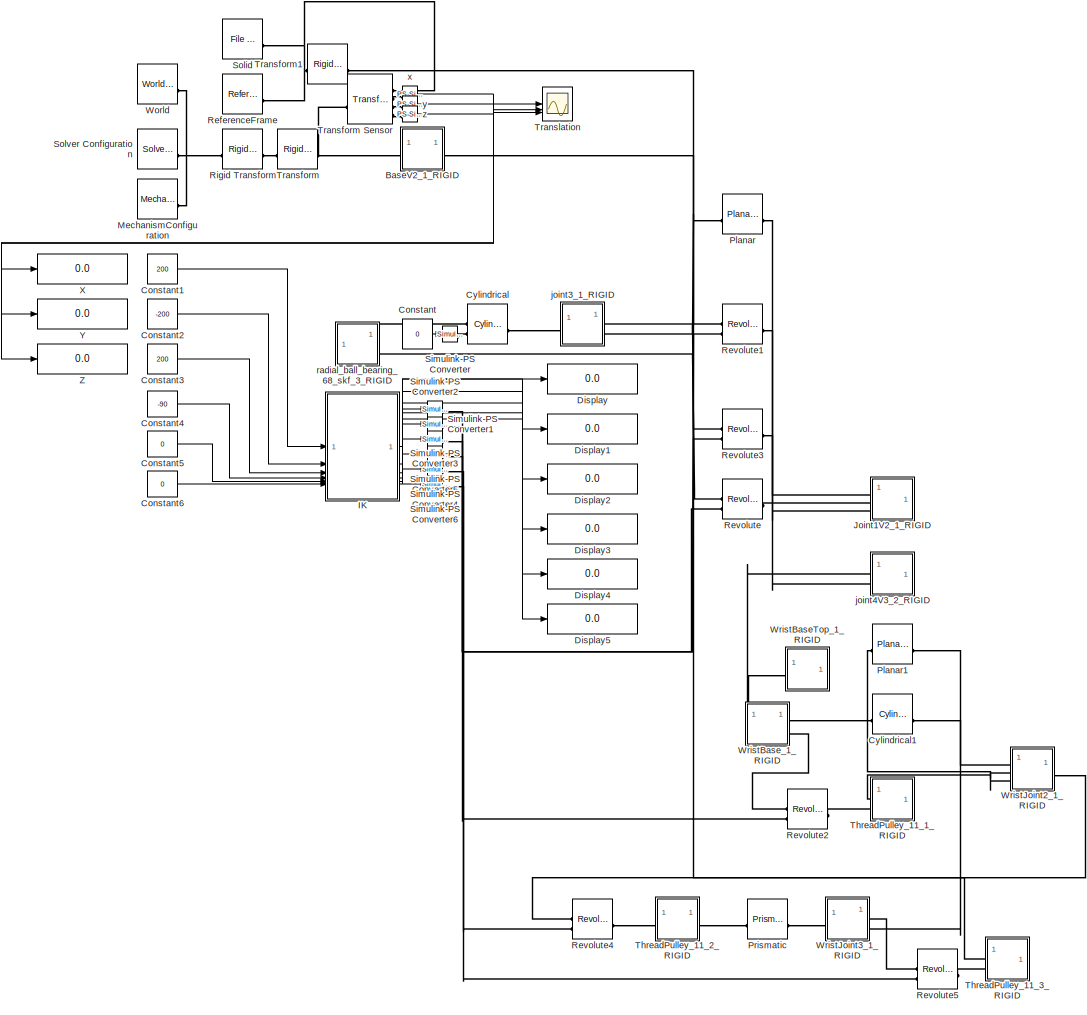
[diagram: root canvas - part 1/1, most of the canvas]
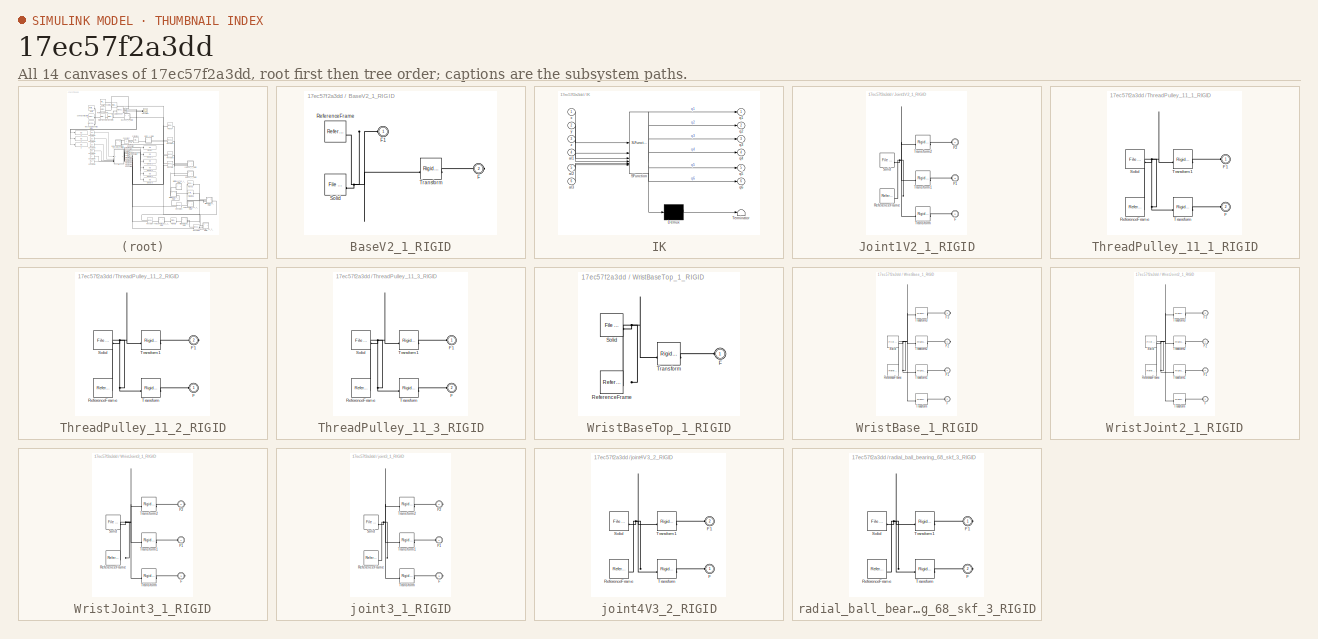
[diagram: thumbnail index - all 14 canvases of the model, root first then tree order]
MODEL slx_17ec57f2a3dd
KIND model
CONFIG AbsTol = auto
CONFIG EnableMultiTasking = off
CONFIG FixedStep = auto
CONFIG MaxStep = auto
CONFIG MinStep = auto
CONFIG RelTol = 1e-3
CONFIG SampleTimeConstraint = Unconstrained
CONFIG SolverName = VariableStepAuto
CONFIG StartTime = 0.0
CONFIG StopTime = 100
WORKSPACE source: external: MATLAB File  (data not in archive)
BLOCK [SubSystem] BaseV2_1_RIGID
BLOCK [PMIOPort] BaseV2_1_RIGID/F
  Port = 2
  Side = Right
BLOCK [PMIOPort] BaseV2_1_RIGID/F1
  Side = Left
BLOCK [Reference] BaseV2_1_RIGID/ReferenceFrame  REF=sm_lib/Frames and
Transforms/Reference
Frame
  SourceBlock = sm_lib/Frames and\nTransforms/Reference\nFrame
  SourceType = Reference\nFrame
BLOCK [Reference] BaseV2_1_RIGID/Solid  REF=sm_lib/Body Elements/File Solid
  SourceBlock = sm_lib/Body Elements/File Solid
  SourceType = File Solid
BLOCK [Reference] BaseV2_1_RIGID/Transform  REF=sm_lib/Frames and
Transforms/Rigid
Transform
  SourceBlock = sm_lib/Frames and\nTransforms/Rigid\nTransform
  SourceType = Rigid\nTransform
BLOCK [Constant] Constant
  Value = 0
BLOCK [Constant] Constant1
  Value = 200
BLOCK [Constant] Constant2
  Value = -200
BLOCK [Constant] Constant3
  Value = 200
BLOCK [Constant] Constant4
  Value = -90
BLOCK [Constant] Constant5
  Value = 0
BLOCK [Constant] Constant6
  Value = 0
BLOCK [Reference] Cylindrical  REF=sm_lib/Joints/Cylindrical
Joint
  SourceBlock = sm_lib/Joints/Cylindrical\nJoint
  SourceType = Cylindrical\nJoint
BLOCK [Reference] Cylindrical1  REF=sm_lib/Joints/Cylindrical
Joint
  SourceBlock = sm_lib/Joints/Cylindrical\nJoint
  SourceType = Cylindrical\nJoint
BLOCK [Display] Display
  Decimation = 1
BLOCK [Display] Display1
  Decimation = 1
BLOCK [Display] Display2
  Decimation = 1
BLOCK [Display] Display3
  Decimation = 1
BLOCK [Display] Display4
  Decimation = 1
BLOCK [Display] Display5
  Decimation = 1
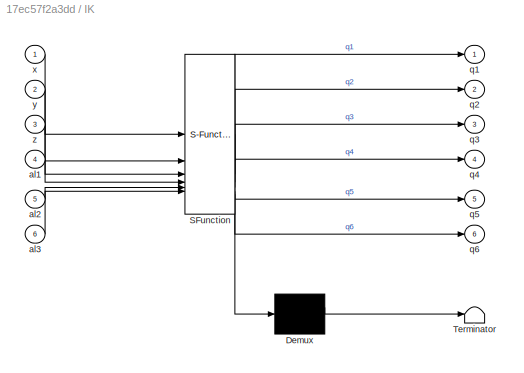
BLOCK [SubSystem] IK
  ErrorFcn = Stateflow.Translate.translate
  LibrarySourceBlock = simulink/User-Defined\nFunctions/MATLAB Function
  PermitHierarchicalResolution = ExplicitOnly
  SFBlockType = MATLAB Function
  TreatAsAtomicUnit = on
BLOCK [Demux] IK/ Demux 
  Outputs = 1
BLOCK [S-Function] IK/ SFunction 
  EnableBusSupport = on
  FunctionName = sf_sfun
  PortCounts = [6 7]
  SFcnIsStateOwnerBlock = off
  SFunctionDeploymentMode = off
  Tag = Stateflow S-Function 2
BLOCK [Terminator] IK/ Terminator 
BLOCK [Inport] IK/al1
  Port = 4
BLOCK [Inport] IK/al2
  Port = 5
BLOCK [Inport] IK/al3
  Port = 6
BLOCK [Outport] IK/q1
BLOCK [Outport] IK/q2
  Port = 2
BLOCK [Outport] IK/q3
  Port = 3
BLOCK [Outport] IK/q4
  Port = 4
BLOCK [Outport] IK/q5
  Port = 5
BLOCK [Outport] IK/q6
  Port = 6
BLOCK [Inport] IK/x
BLOCK [Inport] IK/y
  Port = 2
BLOCK [Inport] IK/z
  Port = 3
BLOCK [SubSystem] Joint1V2_1_RIGID
BLOCK [PMIOPort] Joint1V2_1_RIGID/F
  Port = 2
  Side = Left
BLOCK [PMIOPort] Joint1V2_1_RIGID/F1
  Port = 3
  Side = Left
BLOCK [PMIOPort] Joint1V2_1_RIGID/F2
  Side = Left
BLOCK [Reference] Joint1V2_1_RIGID/ReferenceFrame  REF=sm_lib/Frames and
Transforms/Reference
Frame
  SourceBlock = sm_lib/Frames and\nTransforms/Reference\nFrame
  SourceType = Reference\nFrame
BLOCK [Reference] Joint1V2_1_RIGID/Solid  REF=sm_lib/Body Elements/File Solid
  SourceBlock = sm_lib/Body Elements/File Solid
  SourceType = File Solid
BLOCK [Reference] Joint1V2_1_RIGID/Transform  REF=sm_lib/Frames and
Transforms/Rigid
Transform
  SourceBlock = sm_lib/Frames and\nTransforms/Rigid\nTransform
  SourceType = Rigid\nTransform
BLOCK [Reference] Joint1V2_1_RIGID/Transform1  REF=sm_lib/Frames and
Transforms/Rigid
Transform
  SourceBlock = sm_lib/Frames and\nTransforms/Rigid\nTransform
  SourceType = Rigid\nTransform
BLOCK [Reference] Joint1V2_1_RIGID/Transform2  REF=sm_lib/Frames and
Transforms/Rigid
Transform
  SourceBlock = sm_lib/Frames and\nTransforms/Rigid\nTransform
  SourceType = Rigid\nTransform
BLOCK [Reference] MechanismConfiguration  REF=sm_lib/Utilities/Mechanism
Configuration
  SourceBlock = sm_lib/Utilities/Mechanism\nConfiguration
  SourceType = Mechanism\nConfiguration
BLOCK [Reference] Planar  REF=sm_lib/Joints/Planar Joint
  SourceBlock = sm_lib/Joints/Planar Joint
  SourceType = Planar Joint
BLOCK [Reference] Planar1  REF=sm_lib/Joints/Planar Joint
  SourceBlock = sm_lib/Joints/Planar Joint
  SourceType = Planar Joint
BLOCK [Reference] Prismatic  REF=sm_lib/Joints/Prismatic
Joint
  SourceBlock = sm_lib/Joints/Prismatic\nJoint
  SourceType = Prismatic\nJoint
BLOCK [Reference] ReferenceFrame  REF=sm_lib/Frames and
Transforms/Reference
Frame
  SourceBlock = sm_lib/Frames and\nTransforms/Reference\nFrame
  SourceType = Reference\nFrame
BLOCK [Reference] Revolute  REF=sm_lib/Joints/Revolute Joint
  SourceBlock = sm_lib/Joints/Revolute Joint
  SourceType = Revolute Joint
BLOCK [Reference] Revolute1  REF=sm_lib/Joints/Revolute Joint
  SourceBlock = sm_lib/Joints/Revolute Joint
  SourceType = Revolute Joint
BLOCK [Reference] Revolute2  REF=sm_lib/Joints/Revolute Joint
  SourceBlock = sm_lib/Joints/Revolute Joint
  SourceType = Revolute Joint
BLOCK [Reference] Revolute3  REF=sm_lib/Joints/Revolute Joint
  SourceBlock = sm_lib/Joints/Revolute Joint
  SourceType = Revolute Joint
BLOCK [Reference] Revolute4  REF=sm_lib/Joints/Revolute Joint
  SourceBlock = sm_lib/Joints/Revolute Joint
  SourceType = Revolute Joint
BLOCK [Reference] Revolute5  REF=sm_lib/Joints/Revolute Joint
  SourceBlock = sm_lib/Joints/Revolute Joint
  SourceType = Revolute Joint
BLOCK [Reference] Rigid Transform  REF=sm_lib/Frames and
Transforms/Rigid
Transform
  SourceBlock = sm_lib/Frames and\nTransforms/Rigid\nTransform
  SourceType = Rigid\nTransform
BLOCK [Reference] Simulink-PS Converter  REF=nesl_utility/Simulink-PS
Converter
  SourceBlock = nesl_utility/Simulink-PS\nConverter
  SourceType = Simulink-PS\nConverter
BLOCK [Reference] Simulink-PS Converter1  REF=nesl_utility/Simulink-PS
Converter
  SourceBlock = nesl_utility/Simulink-PS\nConverter
  SourceType = Simulink-PS\nConverter
BLOCK [Reference] Simulink-PS Converter2  REF=nesl_utility/Simulink-PS
Converter
  SourceBlock = nesl_utility/Simulink-PS\nConverter
  SourceType = Simulink-PS\nConverter
BLOCK [Reference] Simulink-PS Converter3  REF=nesl_utility/Simulink-PS
Converter
  SourceBlock = nesl_utility/Simulink-PS\nConverter
  SourceType = Simulink-PS\nConverter
BLOCK [Reference] Simulink-PS Converter4  REF=nesl_utility/Simulink-PS
Converter
  SourceBlock = nesl_utility/Simulink-PS\nConverter
  SourceType = Simulink-PS\nConverter
BLOCK [Reference] Simulink-PS Converter5  REF=nesl_utility/Simulink-PS
Converter
  SourceBlock = nesl_utility/Simulink-PS\nConverter
  SourceType = Simulink-PS\nConverter
BLOCK [Reference] Simulink-PS Converter6  REF=nesl_utility/Simulink-PS
Converter
  SourceBlock = nesl_utility/Simulink-PS\nConverter
  SourceType = Simulink-PS\nConverter
BLOCK [Reference] Solid  REF=sm_lib/Body Elements/File Solid
  SourceBlock = sm_lib/Body Elements/File Solid
  SourceType = File Solid
BLOCK [Reference] Solver Configuration  REF=nesl_utility/Solver
Configuration
  SourceBlock = nesl_utility/Solver\nConfiguration
  SourceType = Solver\nConfiguration
BLOCK [SubSystem] ThreadPulley_11_1_RIGID
BLOCK [PMIOPort] ThreadPulley_11_1_RIGID/F
  Port = 2
  Side = Left
BLOCK [PMIOPort] ThreadPulley_11_1_RIGID/F1
  Side = Left
BLOCK [Reference] ThreadPulley_11_1_RIGID/ReferenceFrame  REF=sm_lib/Frames and
Transforms/Reference
Frame
  SourceBlock = sm_lib/Frames and\nTransforms/Reference\nFrame
  SourceType = Reference\nFrame
BLOCK [Reference] ThreadPulley_11_1_RIGID/Solid  REF=sm_lib/Body Elements/File Solid
  SourceBlock = sm_lib/Body Elements/File Solid
  SourceType = File Solid
BLOCK [Reference] ThreadPulley_11_1_RIGID/Transform  REF=sm_lib/Frames and
Transforms/Rigid
Transform
  SourceBlock = sm_lib/Frames and\nTransforms/Rigid\nTransform
  SourceType = Rigid\nTransform
BLOCK [Reference] ThreadPulley_11_1_RIGID/Transform1  REF=sm_lib/Frames and
Transforms/Rigid
Transform
  SourceBlock = sm_lib/Frames and\nTransforms/Rigid\nTransform
  SourceType = Rigid\nTransform
BLOCK [SubSystem] ThreadPulley_11_2_RIGID
BLOCK [PMIOPort] ThreadPulley_11_2_RIGID/F
  Side = Left
BLOCK [PMIOPort] ThreadPulley_11_2_RIGID/F1
  Port = 2
  Side = Right
BLOCK [Reference] ThreadPulley_11_2_RIGID/ReferenceFrame  REF=sm_lib/Frames and
Transforms/Reference
Frame
  SourceBlock = sm_lib/Frames and\nTransforms/Reference\nFrame
  SourceType = Reference\nFrame
BLOCK [Reference] ThreadPulley_11_2_RIGID/Solid  REF=sm_lib/Body Elements/File Solid
  SourceBlock = sm_lib/Body Elements/File Solid
  SourceType = File Solid
BLOCK [Reference] ThreadPulley_11_2_RIGID/Transform  REF=sm_lib/Frames and
Transforms/Rigid
Transform
  SourceBlock = sm_lib/Frames and\nTransforms/Rigid\nTransform
  SourceType = Rigid\nTransform
BLOCK [Reference] ThreadPulley_11_2_RIGID/Transform1  REF=sm_lib/Frames and
Transforms/Rigid
Transform
  SourceBlock = sm_lib/Frames and\nTransforms/Rigid\nTransform
  SourceType = Rigid\nTransform
BLOCK [SubSystem] ThreadPulley_11_3_RIGID
BLOCK [PMIOPort] ThreadPulley_11_3_RIGID/F
  Port = 2
  Side = Left
BLOCK [PMIOPort] ThreadPulley_11_3_RIGID/F1
  Side = Left
BLOCK [Reference] ThreadPulley_11_3_RIGID/ReferenceFrame  REF=sm_lib/Frames and
Transforms/Reference
Frame
  SourceBlock = sm_lib/Frames and\nTransforms/Reference\nFrame
  SourceType = Reference\nFrame
BLOCK [Reference] ThreadPulley_11_3_RIGID/Solid  REF=sm_lib/Body Elements/File Solid
  SourceBlock = sm_lib/Body Elements/File Solid
  SourceType = File Solid
BLOCK [Reference] ThreadPulley_11_3_RIGID/Transform  REF=sm_lib/Frames and
Transforms/Rigid
Transform
  SourceBlock = sm_lib/Frames and\nTransforms/Rigid\nTransform
  SourceType = Rigid\nTransform
BLOCK [Reference] ThreadPulley_11_3_RIGID/Transform1  REF=sm_lib/Frames and
Transforms/Rigid
Transform
  SourceBlock = sm_lib/Frames and\nTransforms/Rigid\nTransform
  SourceType = Rigid\nTransform
BLOCK [Reference] Transform  REF=sm_lib/Frames and
Transforms/Rigid
Transform
  SourceBlock = sm_lib/Frames and\nTransforms/Rigid\nTransform
  SourceType = Rigid\nTransform
BLOCK [Reference] Transform Sensor  REF=sm_lib/Frames and
Transforms/Transform
Sensor
  SourceBlock = sm_lib/Frames and\nTransforms/Transform\nSensor
  SourceType = Transform\nSensor
BLOCK [Reference] Transform1  REF=sm_lib/Frames and
Transforms/Rigid
Transform
  SourceBlock = sm_lib/Frames and\nTransforms/Rigid\nTransform
  SourceType = Rigid\nTransform
BLOCK [Scope] Translation
  Floating = off
  NumInputPorts = 3
  ScopeSpecificationString = Simulink.scopes.TimeScopeBlockCfg('CurrentConfiguration', extmgr.ConfigurationSet(extmgr.Configuration('Core','General UI',true),extmgr.Configuration('Core','Source UI',true),extmgr.Configuration('Sources','WiredSimulink',true,'DataLoggingVariableName','ScopeData1'),extmgr.Configuration('Visuals','Time Domain',true,'SerializedDisplays',{struct('MinYLimReal','-0.50005','MaxYLimReal','0.68853','YLab...<+1982ch>
BLOCK [Reference] World  REF=sm_lib/Frames and
Transforms/World Frame
  SourceBlock = sm_lib/Frames and\nTransforms/World Frame
  SourceType = World Frame
BLOCK [SubSystem] WristBaseTop_1_RIGID
BLOCK [PMIOPort] WristBaseTop_1_RIGID/F
  Side = Left
BLOCK [Reference] WristBaseTop_1_RIGID/ReferenceFrame  REF=sm_lib/Frames and
Transforms/Reference
Frame
  SourceBlock = sm_lib/Frames and\nTransforms/Reference\nFrame
  SourceType = Reference\nFrame
BLOCK [Reference] WristBaseTop_1_RIGID/Solid  REF=sm_lib/Body Elements/File Solid
  SourceBlock = sm_lib/Body Elements/File Solid
  SourceType = File Solid
BLOCK [Reference] WristBaseTop_1_RIGID/Transform  REF=sm_lib/Frames and
Transforms/Rigid
Transform
  SourceBlock = sm_lib/Frames and\nTransforms/Rigid\nTransform
  SourceType = Rigid\nTransform
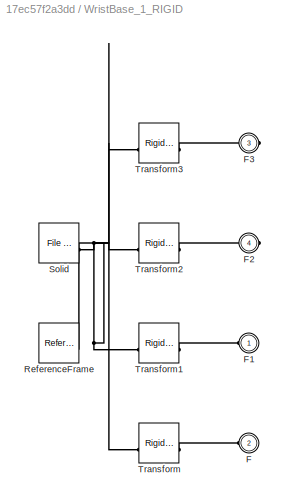
BLOCK [SubSystem] WristBase_1_RIGID
BLOCK [PMIOPort] WristBase_1_RIGID/F
  Port = 2
  Side = Left
BLOCK [PMIOPort] WristBase_1_RIGID/F1
  Side = Left
BLOCK [PMIOPort] WristBase_1_RIGID/F2
  Port = 4
  Side = Right
BLOCK [PMIOPort] WristBase_1_RIGID/F3
  Port = 3
  Side = Right
BLOCK [Reference] WristBase_1_RIGID/ReferenceFrame  REF=sm_lib/Frames and
Transforms/Reference
Frame
  SourceBlock = sm_lib/Frames and\nTransforms/Reference\nFrame
  SourceType = Reference\nFrame
BLOCK [Reference] WristBase_1_RIGID/Solid  REF=sm_lib/Body Elements/File Solid
  SourceBlock = sm_lib/Body Elements/File Solid
  SourceType = File Solid
BLOCK [Reference] WristBase_1_RIGID/Transform  REF=sm_lib/Frames and
Transforms/Rigid
Transform
  SourceBlock = sm_lib/Frames and\nTransforms/Rigid\nTransform
  SourceType = Rigid\nTransform
BLOCK [Reference] WristBase_1_RIGID/Transform1  REF=sm_lib/Frames and
Transforms/Rigid
Transform
  SourceBlock = sm_lib/Frames and\nTransforms/Rigid\nTransform
  SourceType = Rigid\nTransform
BLOCK [Reference] WristBase_1_RIGID/Transform2  REF=sm_lib/Frames and
Transforms/Rigid
Transform
  SourceBlock = sm_lib/Frames and\nTransforms/Rigid\nTransform
  SourceType = Rigid\nTransform
BLOCK [Reference] WristBase_1_RIGID/Transform3  REF=sm_lib/Frames and
Transforms/Rigid
Transform
  SourceBlock = sm_lib/Frames and\nTransforms/Rigid\nTransform
  SourceType = Rigid\nTransform
BLOCK [SubSystem] WristJoint2_1_RIGID
BLOCK [PMIOPort] WristJoint2_1_RIGID/F
  Side = Left
BLOCK [PMIOPort] WristJoint2_1_RIGID/F1
  Port = 2
  Side = Left
BLOCK [PMIOPort] WristJoint2_1_RIGID/F2
  Port = 4
  Side = Right
BLOCK [PMIOPort] WristJoint2_1_RIGID/F3
  Port = 3
  Side = Left
BLOCK [Reference] WristJoint2_1_RIGID/ReferenceFrame  REF=sm_lib/Frames and
Transforms/Reference
Frame
  SourceBlock = sm_lib/Frames and\nTransforms/Reference\nFrame
  SourceType = Reference\nFrame
BLOCK [Reference] WristJoint2_1_RIGID/Solid  REF=sm_lib/Body Elements/File Solid
  SourceBlock = sm_lib/Body Elements/File Solid
  SourceType = File Solid
BLOCK [Reference] WristJoint2_1_RIGID/Transform  REF=sm_lib/Frames and
Transforms/Rigid
Transform
  SourceBlock = sm_lib/Frames and\nTransforms/Rigid\nTransform
  SourceType = Rigid\nTransform
BLOCK [Reference] WristJoint2_1_RIGID/Transform1  REF=sm_lib/Frames and
Transforms/Rigid
Transform
  SourceBlock = sm_lib/Frames and\nTransforms/Rigid\nTransform
  SourceType = Rigid\nTransform
BLOCK [Reference] WristJoint2_1_RIGID/Transform2  REF=sm_lib/Frames and
Transforms/Rigid
Transform
  SourceBlock = sm_lib/Frames and\nTransforms/Rigid\nTransform
  SourceType = Rigid\nTransform
BLOCK [Reference] WristJoint2_1_RIGID/Transform3  REF=sm_lib/Frames and
Transforms/Rigid
Transform
  SourceBlock = sm_lib/Frames and\nTransforms/Rigid\nTransform
  SourceType = Rigid\nTransform
BLOCK [SubSystem] WristJoint3_1_RIGID
BLOCK [PMIOPort] WristJoint3_1_RIGID/F
  Port = 3
  Side = Right
BLOCK [PMIOPort] WristJoint3_1_RIGID/F1
  Side = Left
BLOCK [PMIOPort] WristJoint3_1_RIGID/F2
  Port = 2
  Side = Right
BLOCK [Reference] WristJoint3_1_RIGID/ReferenceFrame  REF=sm_lib/Frames and
Transforms/Reference
Frame
  SourceBlock = sm_lib/Frames and\nTransforms/Reference\nFrame
  SourceType = Reference\nFrame
BLOCK [Reference] WristJoint3_1_RIGID/Solid  REF=sm_lib/Body Elements/File Solid
  SourceBlock = sm_lib/Body Elements/File Solid
  SourceType = File Solid
BLOCK [Reference] WristJoint3_1_RIGID/Transform  REF=sm_lib/Frames and
Transforms/Rigid
Transform
  SourceBlock = sm_lib/Frames and\nTransforms/Rigid\nTransform
  SourceType = Rigid\nTransform
BLOCK [Reference] WristJoint3_1_RIGID/Transform1  REF=sm_lib/Frames and
Transforms/Rigid
Transform
  SourceBlock = sm_lib/Frames and\nTransforms/Rigid\nTransform
  SourceType = Rigid\nTransform
BLOCK [Reference] WristJoint3_1_RIGID/Transform2  REF=sm_lib/Frames and
Transforms/Rigid
Transform
  SourceBlock = sm_lib/Frames and\nTransforms/Rigid\nTransform
  SourceType = Rigid\nTransform
BLOCK [Display] X
  Decimation = 1
BLOCK [Display] Y
  Decimation = 1
BLOCK [Display] Z
  Decimation = 1
BLOCK [SubSystem] joint3_1_RIGID
BLOCK [PMIOPort] joint3_1_RIGID/F
  Port = 3
  Side = Right
BLOCK [PMIOPort] joint3_1_RIGID/F1
  Side = Left
BLOCK [PMIOPort] joint3_1_RIGID/F2
  Port = 2
  Side = Right
BLOCK [Reference] joint3_1_RIGID/ReferenceFrame  REF=sm_lib/Frames and
Transforms/Reference
Frame
  SourceBlock = sm_lib/Frames and\nTransforms/Reference\nFrame
  SourceType = Reference\nFrame
BLOCK [Reference] joint3_1_RIGID/Solid  REF=sm_lib/Body Elements/File Solid
  SourceBlock = sm_lib/Body Elements/File Solid
  SourceType = File Solid
BLOCK [Reference] joint3_1_RIGID/Transform  REF=sm_lib/Frames and
Transforms/Rigid
Transform
  SourceBlock = sm_lib/Frames and\nTransforms/Rigid\nTransform
  SourceType = Rigid\nTransform
BLOCK [Reference] joint3_1_RIGID/Transform1  REF=sm_lib/Frames and
Transforms/Rigid
Transform
  SourceBlock = sm_lib/Frames and\nTransforms/Rigid\nTransform
  SourceType = Rigid\nTransform
BLOCK [Reference] joint3_1_RIGID/Transform2  REF=sm_lib/Frames and
Transforms/Rigid
Transform
  SourceBlock = sm_lib/Frames and\nTransforms/Rigid\nTransform
  SourceType = Rigid\nTransform
BLOCK [SubSystem] joint4V3_2_RIGID
BLOCK [PMIOPort] joint4V3_2_RIGID/F
  Side = Left
BLOCK [PMIOPort] joint4V3_2_RIGID/F1
  Port = 2
  Side = Left
BLOCK [Reference] joint4V3_2_RIGID/ReferenceFrame  REF=sm_lib/Frames and
Transforms/Reference
Frame
  SourceBlock = sm_lib/Frames and\nTransforms/Reference\nFrame
  SourceType = Reference\nFrame
BLOCK [Reference] joint4V3_2_RIGID/Solid  REF=sm_lib/Body Elements/File Solid
  SourceBlock = sm_lib/Body Elements/File Solid
  SourceType = File Solid
BLOCK [Reference] joint4V3_2_RIGID/Transform  REF=sm_lib/Frames and
Transforms/Rigid
Transform
  SourceBlock = sm_lib/Frames and\nTransforms/Rigid\nTransform
  SourceType = Rigid\nTransform
BLOCK [Reference] joint4V3_2_RIGID/Transform1  REF=sm_lib/Frames and
Transforms/Rigid
Transform
  SourceBlock = sm_lib/Frames and\nTransforms/Rigid\nTransform
  SourceType = Rigid\nTransform
BLOCK [SubSystem] radial_ball_bearing_68_skf_3_RIGID
BLOCK [PMIOPort] radial_ball_bearing_68_skf_3_RIGID/F
  Port = 2
  Side = Right
BLOCK [PMIOPort] radial_ball_bearing_68_skf_3_RIGID/F1
  Side = Right
BLOCK [Reference] radial_ball_bearing_68_skf_3_RIGID/ReferenceFrame  REF=sm_lib/Frames and
Transforms/Reference
Frame
  SourceBlock = sm_lib/Frames and\nTransforms/Reference\nFrame
  SourceType = Reference\nFrame
BLOCK [Reference] radial_ball_bearing_68_skf_3_RIGID/Solid  REF=sm_lib/Body Elements/File Solid
  SourceBlock = sm_lib/Body Elements/File Solid
  SourceType = File Solid
BLOCK [Reference] radial_ball_bearing_68_skf_3_RIGID/Transform  REF=sm_lib/Frames and
Transforms/Rigid
Transform
  SourceBlock = sm_lib/Frames and\nTransforms/Rigid\nTransform
  SourceType = Rigid\nTransform
BLOCK [Reference] radial_ball_bearing_68_skf_3_RIGID/Transform1  REF=sm_lib/Frames and
Transforms/Rigid
Transform
  SourceBlock = sm_lib/Frames and\nTransforms/Rigid\nTransform
  SourceType = Rigid\nTransform
BLOCK [Reference] x  REF=nesl_utility/PS-Simulink
Converter
  SourceBlock = nesl_utility/PS-Simulink\nConverter
  SourceType = PS-Simulink\nConverter
BLOCK [Reference] y  REF=nesl_utility/PS-Simulink
Converter
  SourceBlock = nesl_utility/PS-Simulink\nConverter
  SourceType = PS-Simulink\nConverter
BLOCK [Reference] z  REF=nesl_utility/PS-Simulink
Converter
  SourceBlock = nesl_utility/PS-Simulink\nConverter
  SourceType = PS-Simulink\nConverter
LINE Constant1:1 -> IK:1
LINE Constant2:1 -> IK:2
LINE Constant3:1 -> IK:3
LINE Constant4:1 -> IK:4
LINE Constant5:1 -> IK:5
LINE Constant6:1 -> IK:6
LINE Constant:1 -> Simulink-PS Converter:1
NET IK:1 -> Display:1, Simulink-PS Converter2:1
NET IK:2 -> Display1:1, Simulink-PS Converter1:1
NET IK:3 -> Display2:1, Simulink-PS Converter3:1
NET IK:4 -> Display3:1, Simulink-PS Converter5:1
NET IK:5 -> Display4:1, Simulink-PS Converter4:1
NET IK:6 -> Display5:1, Simulink-PS Converter6:1
NET x:1 -> Translation:1, X:1
NET y:1 -> Translation:2, Y:1
NET z:1 -> Translation:3, Z:1
PNET net1: BaseV2_1_RIGID/F1:RConn1 -- BaseV2_1_RIGID/ReferenceFrame:RConn1 -- BaseV2_1_RIGID/Solid:RConn1 -- BaseV2_1_RIGID/Transform:LConn1
PLINE BaseV2_1_RIGID/F:RConn1 -- BaseV2_1_RIGID/Transform:RConn1
PNET net2: BaseV2_1_RIGID:LConn1 -- Transform Sensor:LConn1 -- Transform:RConn1
PLINE BaseV2_1_RIGID:RConn1 -- Revolute1:LConn1
PLINE Cylindrical1:LConn1 -- WristBase_1_RIGID:RConn1
PLINE Cylindrical1:RConn1 -- WristJoint2_1_RIGID:LConn1
PLINE Cylindrical:LConn1 -- radial_ball_bearing_68_skf_3_RIGID:RConn1
PLINE Cylindrical:LConn2 -- Simulink-PS Converter:RConn1
PLINE Cylindrical:RConn1 -- joint3_1_RIGID:LConn1
PLINE Joint1V2_1_RIGID/F1:RConn1 -- Joint1V2_1_RIGID/Transform1:RConn1
PLINE Joint1V2_1_RIGID/F2:RConn1 -- Joint1V2_1_RIGID/Transform2:RConn1
PLINE Joint1V2_1_RIGID/F:RConn1 -- Joint1V2_1_RIGID/Transform:RConn1
PNET net3: Joint1V2_1_RIGID/ReferenceFrame:RConn1 -- Joint1V2_1_RIGID/Solid:RConn1 -- Joint1V2_1_RIGID/Transform1:LConn1 -- Joint1V2_1_RIGID/Transform2:LConn1 -- Joint1V2_1_RIGID/Transform:LConn1
PLINE Joint1V2_1_RIGID:LConn1 -- Planar:RConn1
PLINE Joint1V2_1_RIGID:LConn2 -- Revolute:RConn1
PLINE Joint1V2_1_RIGID:LConn3 -- Revolute1:RConn1
PNET net4: MechanismConfiguration:RConn1 -- Rigid Transform:LConn1 -- Solver Configuration:RConn1 -- World:RConn1
PLINE Planar1:LConn1 -- WristJoint3_1_RIGID:RConn2
PLINE Planar1:RConn1 -- WristJoint2_1_RIGID:LConn3
PLINE Planar:LConn1 -- joint3_1_RIGID:RConn2
PLINE Prismatic:LConn1 -- ThreadPulley_11_2_RIGID:RConn1
PLINE Prismatic:RConn1 -- WristJoint3_1_RIGID:LConn1
PNET net5: ReferenceFrame:RConn1 -- Solid:RConn1 -- Transform Sensor:RConn1 -- Transform1:LConn1
PLINE Revolute1:LConn2 -- Simulink-PS Converter2:RConn1
PLINE Revolute2:LConn1 -- WristBase_1_RIGID:RConn2
PLINE Revolute2:LConn2 -- Simulink-PS Converter5:RConn1
PLINE Revolute2:RConn1 -- ThreadPulley_11_1_RIGID:LConn2
PLINE Revolute3:LConn1 -- joint3_1_RIGID:RConn1
PLINE Revolute3:LConn2 -- Simulink-PS Converter3:RConn1
PLINE Revolute3:RConn1 -- joint4V3_2_RIGID:LConn2
PLINE Revolute4:LConn1 -- WristJoint2_1_RIGID:RConn1
PLINE Revolute4:LConn2 -- Simulink-PS Converter4:RConn1
PLINE Revolute4:RConn1 -- ThreadPulley_11_2_RIGID:LConn1
PLINE Revolute5:LConn1 -- WristJoint3_1_RIGID:RConn1
PLINE Revolute5:LConn2 -- Simulink-PS Converter6:RConn1
PLINE Revolute5:RConn1 -- ThreadPulley_11_3_RIGID:LConn2
PLINE Revolute:LConn1 -- radial_ball_bearing_68_skf_3_RIGID:RConn2
PLINE Revolute:LConn2 -- Simulink-PS Converter1:RConn1
PLINE Rigid Transform:RConn1 -- Transform:LConn1
PLINE ThreadPulley_11_1_RIGID/F1:RConn1 -- ThreadPulley_11_1_RIGID/Transform1:RConn1
PLINE ThreadPulley_11_1_RIGID/F:RConn1 -- ThreadPulley_11_1_RIGID/Transform:RConn1
PNET net6: ThreadPulley_11_1_RIGID/ReferenceFrame:RConn1 -- ThreadPulley_11_1_RIGID/Solid:RConn1 -- ThreadPulley_11_1_RIGID/Transform1:LConn1 -- ThreadPulley_11_1_RIGID/Transform:LConn1
PLINE ThreadPulley_11_1_RIGID:LConn1 -- WristJoint2_1_RIGID:LConn2
PLINE ThreadPulley_11_2_RIGID/F1:RConn1 -- ThreadPulley_11_2_RIGID/Transform1:RConn1
PLINE ThreadPulley_11_2_RIGID/F:RConn1 -- ThreadPulley_11_2_RIGID/Transform:RConn1
PNET net7: ThreadPulley_11_2_RIGID/ReferenceFrame:RConn1 -- ThreadPulley_11_2_RIGID/Solid:RConn1 -- ThreadPulley_11_2_RIGID/Transform1:LConn1 -- ThreadPulley_11_2_RIGID/Transform:LConn1
PLINE ThreadPulley_11_3_RIGID/F1:RConn1 -- ThreadPulley_11_3_RIGID/Transform1:RConn1
PLINE ThreadPulley_11_3_RIGID/F:RConn1 -- ThreadPulley_11_3_RIGID/Transform:RConn1
PNET net8: ThreadPulley_11_3_RIGID/ReferenceFrame:RConn1 -- ThreadPulley_11_3_RIGID/Solid:RConn1 -- ThreadPulley_11_3_RIGID/Transform1:LConn1 -- ThreadPulley_11_3_RIGID/Transform:LConn1
PLINE ThreadPulley_11_3_RIGID:LConn1 -- Transform1:RConn1
PLINE Transform Sensor:RConn2 -- x:LConn1
PLINE Transform Sensor:RConn3 -- y:LConn1
PLINE Transform Sensor:RConn4 -- z:LConn1
PLINE WristBaseTop_1_RIGID/F:RConn1 -- WristBaseTop_1_RIGID/Transform:RConn1
PNET net9: WristBaseTop_1_RIGID/ReferenceFrame:RConn1 -- WristBaseTop_1_RIGID/Solid:RConn1 -- WristBaseTop_1_RIGID/Transform:LConn1
PLINE WristBaseTop_1_RIGID:LConn1 -- WristBase_1_RIGID:LConn1
PLINE WristBase_1_RIGID/F1:RConn1 -- WristBase_1_RIGID/Transform1:RConn1
PLINE WristBase_1_RIGID/F2:RConn1 -- WristBase_1_RIGID/Transform2:RConn1
PLINE WristBase_1_RIGID/F3:RConn1 -- WristBase_1_RIGID/Transform3:RConn1
PLINE WristBase_1_RIGID/F:RConn1 -- WristBase_1_RIGID/Transform:RConn1
PNET net10: WristBase_1_RIGID/ReferenceFrame:RConn1 -- WristBase_1_RIGID/Solid:RConn1 -- WristBase_1_RIGID/Transform1:LConn1 -- WristBase_1_RIGID/Transform2:LConn1 -- WristBase_1_RIGID/Transform3:LConn1 -- WristBase_1_RIGID/Transform:LConn1
PLINE WristBase_1_RIGID:LConn2 -- joint4V3_2_RIGID:LConn1
PLINE WristJoint2_1_RIGID/F1:RConn1 -- WristJoint2_1_RIGID/Transform1:RConn1
PLINE WristJoint2_1_RIGID/F2:RConn1 -- WristJoint2_1_RIGID/Transform2:RConn1
PLINE WristJoint2_1_RIGID/F3:RConn1 -- WristJoint2_1_RIGID/Transform3:RConn1
PLINE WristJoint2_1_RIGID/F:RConn1 -- WristJoint2_1_RIGID/Transform:RConn1
PNET net11: WristJoint2_1_RIGID/ReferenceFrame:RConn1 -- WristJoint2_1_RIGID/Solid:RConn1 -- WristJoint2_1_RIGID/Transform1:LConn1 -- WristJoint2_1_RIGID/Transform2:LConn1 -- WristJoint2_1_RIGID/Transform3:LConn1 -- WristJoint2_1_RIGID/Transform:LConn1
PLINE WristJoint3_1_RIGID/F1:RConn1 -- WristJoint3_1_RIGID/Transform1:RConn1
PLINE WristJoint3_1_RIGID/F2:RConn1 -- WristJoint3_1_RIGID/Transform2:RConn1
PLINE WristJoint3_1_RIGID/F:RConn1 -- WristJoint3_1_RIGID/Transform:RConn1
PNET net12: WristJoint3_1_RIGID/ReferenceFrame:RConn1 -- WristJoint3_1_RIGID/Solid:RConn1 -- WristJoint3_1_RIGID/Transform1:LConn1 -- WristJoint3_1_RIGID/Transform2:LConn1 -- WristJoint3_1_RIGID/Transform:LConn1
PLINE joint3_1_RIGID/F1:RConn1 -- joint3_1_RIGID/Transform1:RConn1
PLINE joint3_1_RIGID/F2:RConn1 -- joint3_1_RIGID/Transform2:RConn1
PLINE joint3_1_RIGID/F:RConn1 -- joint3_1_RIGID/Transform:RConn1
PNET net13: joint3_1_RIGID/ReferenceFrame:RConn1 -- joint3_1_RIGID/Solid:RConn1 -- joint3_1_RIGID/Transform1:LConn1 -- joint3_1_RIGID/Transform2:LConn1 -- joint3_1_RIGID/Transform:LConn1
PLINE joint4V3_2_RIGID/F1:RConn1 -- joint4V3_2_RIGID/Transform1:RConn1
PLINE joint4V3_2_RIGID/F:RConn1 -- joint4V3_2_RIGID/Transform:RConn1
PNET net14: joint4V3_2_RIGID/ReferenceFrame:RConn1 -- joint4V3_2_RIGID/Solid:RConn1 -- joint4V3_2_RIGID/Transform1:LConn1 -- joint4V3_2_RIGID/Transform:LConn1
PLINE radial_ball_bearing_68_skf_3_RIGID/F1:RConn1 -- radial_ball_bearing_68_skf_3_RIGID/Transform1:RConn1
PLINE radial_ball_bearing_68_skf_3_RIGID/F:RConn1 -- radial_ball_bearing_68_skf_3_RIGID/Transform:RConn1
PNET net15: radial_ball_bearing_68_skf_3_RIGID/ReferenceFrame:RConn1 -- radial_ball_bearing_68_skf_3_RIGID/Solid:RConn1 -- radial_ball_bearing_68_skf_3_RIGID/Transform1:LConn1 -- radial_ball_bearing_68_skf_3_RIGID/Transform:LConn1
note: NET lines group one-source signal fan-out (src -> all destinations, sorted); 1:1 wires keep LINE; PNET lines group multi-terminal physical nets as a canonical sorted terminal list (undirected conserving connections); 2-terminal nets keep the pairwise PLINE form
CHART IK states=1 transitions=1
  STATE_LABEL 'eML_blk_kernel()'
  STATE_LABEL 'SCRIPT:\nfunction [q1,q2,q3,q4,q5,q6]= fcn(x,y,z,al1,al2,al3)\n\nrad=3.14159265359/180;\n%deg=180/3.14159265359;\n%p=1;\n\nal1=al1*rad;\nal2=al2*rad;\nal3=al3*rad;\n\na=22*cos(al1)*cos(al2);\nb=22*cos(al1)*sin(al2);\nc=22*sin(al1);\n\nx1=x-a;\ny1=y-b;\nz1=z-123-c;\n%{\nif y1>0\n    if x1>0\n        ys=-1;\n        yt=0;\n    else\n        ys=-1;\n        yt=-90*rad;\n    end\nelse\n    if x1>0\n        ys=1;\n        yt=0;\n   ...<+1714ch>'
CHART  states=0 transitions=0
